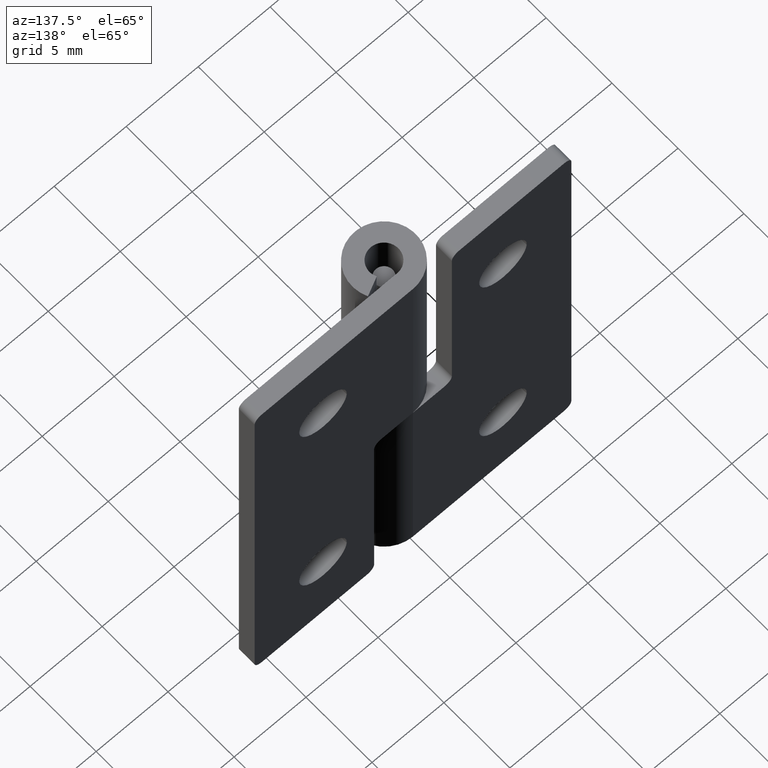
[diagram: clean part render]
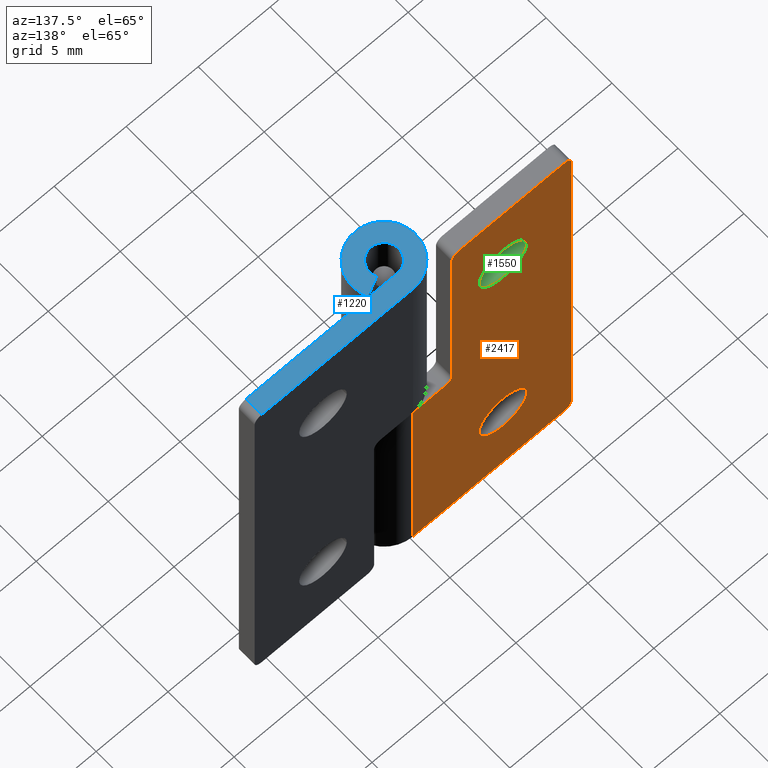
[diagram: same view with three faces highlighted in distinct colors, each labeled with its STEP entity id]
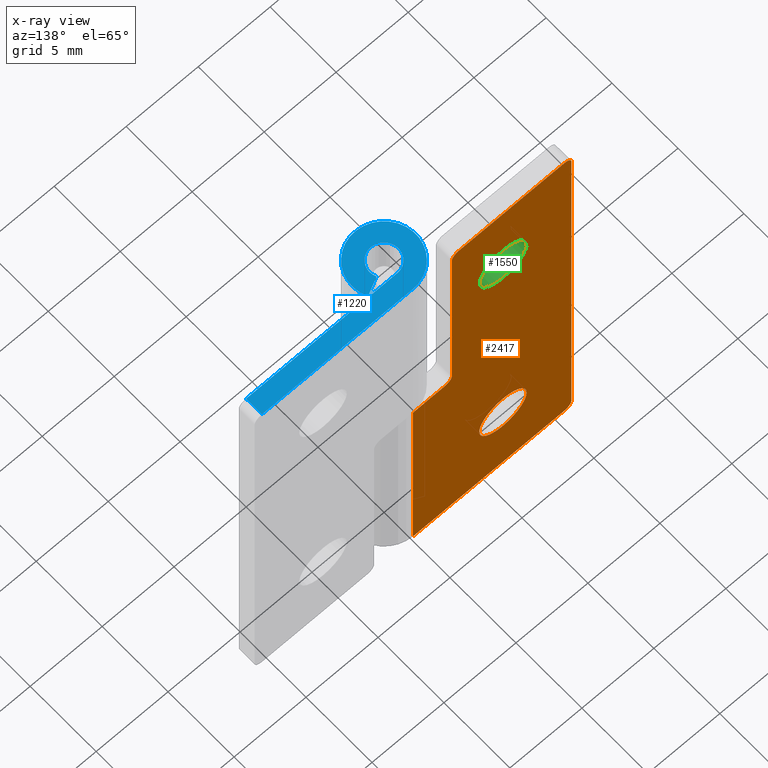
[diagram: x-ray of the same camera — body ghosted, the three highlighted faces saturated]
A machine part, auxiliary view with three faces highlighted in distinct colors.
The next image is the same camera in x-ray (body ghosted, the three faces saturated) — at least one of them is partly hidden behind the body in this view.
Their STEP definitions:

[orange] entity #2417 — the highlighted face is a freeform B-spline surface patch.
#1489=CARTESIAN_POINT('',(-4.611533959151226,2.200001001358030,24.194753775259642));
#1490=VERTEX_POINT('',#1489);
#1496=CARTESIAN_POINT('',(-6.250000000000000,2.200001001358030,22.350000000000001));
#1497=VERTEX_POINT('',#1496);
#1498=CARTESIAN_POINT('',(-4.611533959151226,2.200001001358029,24.194753775259645));
#1499=CARTESIAN_POINT('',(-4.600000000000000,2.200001001358031,24.097718427128928));
#1500=CARTESIAN_POINT('',(-4.600000000000000,2.200001001358030,24.0));
#1501=CARTESIAN_POINT('',(-4.599999999999999,2.200001001358030,22.350000000000001));
#1502=CARTESIAN_POINT('',(-6.250000000000000,2.200001001358030,22.350000000000001));
#1510=(BOUNDED_CURVE()B_SPLINE_CURVE(2,(#1498,#1499,#1500,#1501,#1502),.UNSPECIFIED.,.F.,.U.)B_SPLINE_CURVE_WITH_KNOTS((3,2,3),(0.229562753243202,0.250000000000000,0.500000000000000),.UNSPECIFIED.)CURVE()GEOMETRIC_REPRESENTATION_ITEM()RATIONAL_B_SPLINE_CURVE((0.956027302466079,0.976056276054866,1.0,0.707106781186548,1.0))REPRESENTATION_ITEM(''));
#1511=EDGE_CURVE('',#1490,#1497,#1510,.T.);
#1513=CARTESIAN_POINT('',(-7.896922417392382,2.200001001358030,23.899269909707009));
#1514=VERTEX_POINT('',#1513);
#1515=CARTESIAN_POINT('',(-6.250000000000000,2.200001001358030,22.350000000000001));
#1516=CARTESIAN_POINT('',(-7.802165010280180,2.200001001358031,22.350000000000001));
#1517=CARTESIAN_POINT('',(-7.896922417392382,2.200001001358031,23.899269909707009));
#1525=(BOUNDED_CURVE()B_SPLINE_CURVE(2,(#1515,#1516,#1517),.UNSPECIFIED.,.F.,.U.)B_SPLINE_CURVE_WITH_KNOTS((3,3),(0.500000000000000,0.739332962229295),.UNSPECIFIED.)CURVE()GEOMETRIC_REPRESENTATION_ITEM()RATIONAL_B_SPLINE_CURVE((1.0,0.719603993298013,0.976072041646040))REPRESENTATION_ITEM(''));
#1526=EDGE_CURVE('',#1497,#1514,#1525,.T.);
#1604=CARTESIAN_POINT('',(-6.250000000000000,2.200001001358030,25.649999999999999));
#1605=VERTEX_POINT('',#1604);
#1606=CARTESIAN_POINT('',(-7.896922417392382,2.200001001358030,23.899269909707009));
#1607=CARTESIAN_POINT('',(-7.900000000000000,2.200001001358031,23.949587940496684));
#1608=CARTESIAN_POINT('',(-7.900000000000000,2.200001001358030,24.0));
#1609=CARTESIAN_POINT('',(-7.900000000000000,2.200001001358030,25.650000000000006));
#1610=CARTESIAN_POINT('',(-6.250000000000000,2.200001001358030,25.649999999999999));
#1618=(BOUNDED_CURVE()B_SPLINE_CURVE(2,(#1606,#1607,#1608,#1609,#1610),.UNSPECIFIED.,.F.,.U.)B_SPLINE_CURVE_WITH_KNOTS((3,2,3),(0.739332962229296,0.750000000000000,1.0),.UNSPECIFIED.)CURVE()GEOMETRIC_REPRESENTATION_ITEM()RATIONAL_B_SPLINE_CURVE((0.976072041646042,0.987502787888535,1.0,0.707106781186548,1.0))REPRESENTATION_ITEM(''));
#1619=EDGE_CURVE('',#1514,#1605,#1618,.T.);
#1621=CARTESIAN_POINT('',(-6.250000000000000,2.200001001358030,25.649999999999999));
#1622=CARTESIAN_POINT('',(-4.784509589485300,2.200001001358031,25.650000000000002));
#1623=CARTESIAN_POINT('',(-4.611533959151226,2.200001001358029,24.194753775259645));
#1631=(BOUNDED_CURVE()B_SPLINE_CURVE(2,(#1621,#1622,#1623),.UNSPECIFIED.,.F.,.U.)B_SPLINE_CURVE_WITH_KNOTS((3,3),(0.0,0.229562753243202),.UNSPECIFIED.)CURVE()GEOMETRIC_REPRESENTATION_ITEM()RATIONAL_B_SPLINE_CURVE((1.0,0.731050505131681,0.956027302466079))REPRESENTATION_ITEM(''));
#1632=EDGE_CURVE('',#1605,#1490,#1631,.T.);
#1679=CARTESIAN_POINT('',(-4.611533959151226,2.200001001358030,6.194753775259648));
#1680=VERTEX_POINT('',#1679);
#1686=CARTESIAN_POINT('',(-6.250000000000000,2.200001001358030,4.350000000000000));
#1687=VERTEX_POINT('',#1686);
#1688=CARTESIAN_POINT('',(-4.611533959151226,2.200001001358031,6.194753775259648));
#1689=CARTESIAN_POINT('',(-4.600000000000000,2.200001001358030,6.097718427128929));
#1690=CARTESIAN_POINT('',(-4.600000000000000,2.200001001358030,6.0));
#1691=CARTESIAN_POINT('',(-4.599999999999999,2.200001001358030,4.350000000000000));
#1692=CARTESIAN_POINT('',(-6.250000000000000,2.200001001358030,4.350000000000000));
#1700=(BOUNDED_CURVE()B_SPLINE_CURVE(2,(#1688,#1689,#1690,#1691,#1692),.UNSPECIFIED.,.F.,.U.)B_SPLINE_CURVE_WITH_KNOTS((3,2,3),(0.229562753243201,0.250000000000000,0.500000000000000),.UNSPECIFIED.)CURVE()GEOMETRIC_REPRESENTATION_ITEM()RATIONAL_B_SPLINE_CURVE((0.956027302466078,0.976056276054865,1.0,0.707106781186548,1.0))REPRESENTATION_ITEM(''));
#1701=EDGE_CURVE('',#1680,#1687,#1700,.T.);
#1703=CARTESIAN_POINT('',(-7.896922417392382,2.200001001358030,5.899269909707009));
#1704=VERTEX_POINT('',#1703);
#1705=CARTESIAN_POINT('',(-6.250000000000000,2.200001001358030,4.350000000000000));
#1706=CARTESIAN_POINT('',(-7.802165010280180,2.200001001358031,4.350000000000001));
#1707=CARTESIAN_POINT('',(-7.896922417392382,2.200001001358031,5.899269909707009));
#1715=(BOUNDED_CURVE()B_SPLINE_CURVE(2,(#1705,#1706,#1707),.UNSPECIFIED.,.F.,.U.)B_SPLINE_CURVE_WITH_KNOTS((3,3),(0.500000000000000,0.739332962229295),.UNSPECIFIED.)CURVE()GEOMETRIC_REPRESENTATION_ITEM()RATIONAL_B_SPLINE_CURVE((1.0,0.719603993298013,0.976072041646040))REPRESENTATION_ITEM(''));
#1716=EDGE_CURVE('',#1687,#1704,#1715,.T.);
#1794=CARTESIAN_POINT('',(-6.250000000000000,2.200001001358030,7.650000000000000));
#1795=VERTEX_POINT('',#1794);
#1796=CARTESIAN_POINT('',(-7.896922417392382,2.200001001358030,5.899269909707009));
#1797=CARTESIAN_POINT('',(-7.900000000000000,2.200001001358031,5.949587940496682));
#1798=CARTESIAN_POINT('',(-7.900000000000000,2.200001001358030,6.0));
#1799=CARTESIAN_POINT('',(-7.900000000000000,2.200001001358030,7.650000000000000));
#1800=CARTESIAN_POINT('',(-6.250000000000000,2.200001001358030,7.650000000000000));
#1808=(BOUNDED_CURVE()B_SPLINE_CURVE(2,(#1796,#1797,#1798,#1799,#1800),.UNSPECIFIED.,.F.,.U.)B_SPLINE_CURVE_WITH_KNOTS((3,2,3),(0.739332962229296,0.750000000000000,1.0),.UNSPECIFIED.)CURVE()GEOMETRIC_REPRESENTATION_ITEM()RATIONAL_B_SPLINE_CURVE((0.976072041646042,0.987502787888535,1.0,0.707106781186548,1.0))REPRESENTATION_ITEM(''));
#1809=EDGE_CURVE('',#1704,#1795,#1808,.T.);
#1811=CARTESIAN_POINT('',(-6.250000000000000,2.200001001358030,7.650000000000000));
#1812=CARTESIAN_POINT('',(-4.784509589485308,2.200001001358030,7.650000000000000));
#1813=CARTESIAN_POINT('',(-4.611533959151226,2.200001001358031,6.194753775259648));
#1821=(BOUNDED_CURVE()B_SPLINE_CURVE(2,(#1811,#1812,#1813),.UNSPECIFIED.,.F.,.U.)B_SPLINE_CURVE_WITH_KNOTS((3,3),(0.0,0.229562753243201),.UNSPECIFIED.)CURVE()GEOMETRIC_REPRESENTATION_ITEM()RATIONAL_B_SPLINE_CURVE((1.0,0.731050505131682,0.956027302466078))REPRESENTATION_ITEM(''));
#1822=EDGE_CURVE('',#1795,#1680,#1821,.T.);
#1859=CARTESIAN_POINT('',(-2.199996991273350,2.200000999999950,15.0));
#1860=VERTEX_POINT('',#1859);
#1866=CARTESIAN_POINT('',(-2.699997000000000,2.200000999999950,15.499999956366750));
#1867=VERTEX_POINT('',#1866);
#1868=CARTESIAN_POINT('',(-2.699996999999998,2.200000999999950,15.499999956366750));
#1869=CARTESIAN_POINT('',(-2.699996956366750,2.200000999999950,14.999999991273347));
#1870=CARTESIAN_POINT('',(-2.199996991273350,2.200000999999950,15.0));
#1878=(BOUNDED_CURVE()B_SPLINE_CURVE(2,(#1868,#1869,#1870),.UNSPECIFIED.,.F.,.U.)CURVE()GEOMETRIC_REPRESENTATION_ITEM()QUASI_UNIFORM_CURVE()RATIONAL_B_SPLINE_CURVE((1.0,0.707106805869242,1.0))REPRESENTATION_ITEM(''));
#1879=EDGE_CURVE('',#1867,#1860,#1878,.T.);
#1902=CARTESIAN_POINT('',(-2.699997000000000,2.200000999999950,29.500000000000000));
#1903=VERTEX_POINT('',#1902);
#1904=CARTESIAN_POINT('',(-2.699997000000000,2.200000999999950,29.500000000000000));
#1905=CARTESIAN_POINT('',(-2.699997000000000,2.200000999999950,15.499999956366750));
#1906=QUASI_UNIFORM_CURVE('',1,(#1904,#1905),.UNSPECIFIED.,.F.,.U.);
#1907=EDGE_CURVE('',#1903,#1867,#1906,.T.);
#1922=CARTESIAN_POINT('',(0.0,2.200001000000000,15.0));
#1923=VERTEX_POINT('',#1922);
#1924=CARTESIAN_POINT('',(-2.199996991273350,2.200000999999950,15.0));
#1925=CARTESIAN_POINT('',(0.0,2.200001000000000,15.0));
#1926=QUASI_UNIFORM_CURVE('',1,(#1924,#1925),.UNSPECIFIED.,.F.,.U.);
#1927=EDGE_CURVE('',#1860,#1923,#1926,.T.);
#2018=CARTESIAN_POINT('',(-10.500000000000000,2.200000999999950,30.0));
#2019=VERTEX_POINT('',#2018);
#2025=CARTESIAN_POINT('',(-11.0,2.200000999999950,29.500000000000000));
#2026=VERTEX_POINT('',#2025);
#2027=CARTESIAN_POINT('',(-10.500000000000000,2.200000999999950,30.0));
#2028=CARTESIAN_POINT('',(-11.000000000000002,2.200000999999951,30.000000000000004));
#2029=CARTESIAN_POINT('',(-11.0,2.200000999999950,29.500000000000000));
#2037=(BOUNDED_CURVE()B_SPLINE_CURVE(2,(#2027,#2028,#2029),.UNSPECIFIED.,.F.,.U.)CURVE()GEOMETRIC_REPRESENTATION_ITEM()QUASI_UNIFORM_CURVE()RATIONAL_B_SPLINE_CURVE((1.0,0.707106781186548,1.0))REPRESENTATION_ITEM(''));
#2038=EDGE_CURVE('',#2019,#2026,#2037,.T.);
#2078=CARTESIAN_POINT('',(-3.199997000000000,2.200001000000000,30.0));
#2079=VERTEX_POINT('',#2078);
#2080=CARTESIAN_POINT('',(-2.699997000000000,2.200000999999950,29.500000000000000));
#2081=CARTESIAN_POINT('',(-2.699997000000000,2.200000999999951,30.000000000000004));
#2082=CARTESIAN_POINT('',(-3.199997000000000,2.200000999999950,30.0));
#2090=(BOUNDED_CURVE()B_SPLINE_CURVE(2,(#2080,#2081,#2082),.UNSPECIFIED.,.F.,.U.)CURVE()GEOMETRIC_REPRESENTATION_ITEM()QUASI_UNIFORM_CURVE()RATIONAL_B_SPLINE_CURVE((1.0,0.707106781186548,1.0))REPRESENTATION_ITEM(''));
#2091=EDGE_CURVE('',#1903,#2079,#2090,.T.);
#2132=CARTESIAN_POINT('',(-11.0,2.200000999999950,0.500000000000014));
#2133=VERTEX_POINT('',#2132);
#2139=CARTESIAN_POINT('',(-10.500000000000000,2.200001000000000,0.0));
#2140=VERTEX_POINT('',#2139);
#2141=CARTESIAN_POINT('',(-11.0,2.200000999999950,0.500000000000014));
#2142=CARTESIAN_POINT('',(-11.000000000000002,2.200000999999951,1.398621E-014));
#2143=CARTESIAN_POINT('',(-10.500000000000000,2.200001000000000,0.0));
#2151=(BOUNDED_CURVE()B_SPLINE_CURVE(2,(#2141,#2142,#2143),.UNSPECIFIED.,.F.,.U.)CURVE()GEOMETRIC_REPRESENTATION_ITEM()QUASI_UNIFORM_CURVE()RATIONAL_B_SPLINE_CURVE((1.0,0.707106781186548,1.0))REPRESENTATION_ITEM(''));
#2152=EDGE_CURVE('',#2133,#2140,#2151,.T.);
#2243=CARTESIAN_POINT('',(-0.000000115191736,2.200000000000000,0.0));
#2244=VERTEX_POINT('',#2243);
#2245=CARTESIAN_POINT('',(-0.000000115191736,2.200000000000000,0.0));
#2246=CARTESIAN_POINT('',(0.0,2.200001000000000,15.0));
#2247=QUASI_UNIFORM_CURVE('',1,(#2245,#2246),.UNSPECIFIED.,.F.,.U.);
#2248=EDGE_CURVE('',#2244,#1923,#2247,.T.);
#2307=CARTESIAN_POINT('',(-0.000000115191736,2.200000000000000,0.0));
#2308=CARTESIAN_POINT('',(-10.500000000000000,2.200001000000000,0.0));
#2309=QUASI_UNIFORM_CURVE('',1,(#2307,#2308),.UNSPECIFIED.,.F.,.U.);
#2310=EDGE_CURVE('',#2244,#2140,#2309,.T.);
#2324=CARTESIAN_POINT('',(-11.0,2.200000999999950,0.500000000000014));
#2325=CARTESIAN_POINT('',(-11.0,2.200000999999950,29.500000000000000));
#2326=QUASI_UNIFORM_CURVE('',1,(#2324,#2325),.UNSPECIFIED.,.F.,.U.);
#2327=EDGE_CURVE('',#2133,#2026,#2326,.T.);
#2350=CARTESIAN_POINT('',(-3.199997000000000,2.200001000000000,30.0));
#2351=CARTESIAN_POINT('',(-10.500000000000000,2.200000999999950,30.0));
#2352=QUASI_UNIFORM_CURVE('',1,(#2350,#2351),.UNSPECIFIED.,.F.,.U.);
#2353=EDGE_CURVE('',#2079,#2019,#2352,.T.);
#2388=CARTESIAN_POINT('',(-11.549449978679871,2.200001000000000,-1.498499941854179));
#2389=CARTESIAN_POINT('',(-11.549449978679860,2.200001000000000,31.498500746516889));
#2390=CARTESIAN_POINT('',(0.549450273722857,2.200001000000000,-1.498499941854179));
#2391=CARTESIAN_POINT('',(0.549450273722857,2.200001000000000,31.498500746516889));
#2392=B_SPLINE_SURFACE_WITH_KNOTS('',1,1,((#2388,#2390),(#2389,#2391)),.UNSPECIFIED.,.F.,.F.,.U.,(2,2),(2,2),(0.0,32.997000688371067),(0.0,12.098900252402720),.UNSPECIFIED.);
#2393=ORIENTED_EDGE('',*,*,#1907,.T.);
#2394=ORIENTED_EDGE('',*,*,#1879,.T.);
#2395=ORIENTED_EDGE('',*,*,#1927,.T.);
#2396=ORIENTED_EDGE('',*,*,#2248,.F.);
#2397=ORIENTED_EDGE('',*,*,#2310,.T.);
#2398=ORIENTED_EDGE('',*,*,#2152,.F.);
#2399=ORIENTED_EDGE('',*,*,#2327,.T.);
#2400=ORIENTED_EDGE('',*,*,#2038,.F.);
#2401=ORIENTED_EDGE('',*,*,#2353,.F.);
#2402=ORIENTED_EDGE('',*,*,#2091,.F.);
#2403=EDGE_LOOP('',(#2393,#2394,#2395,#2396,#2397,#2398,#2399,#2400,#2401,#2402));
#2404=FACE_OUTER_BOUND('',#2403,.T.);
#2405=ORIENTED_EDGE('',*,*,#1716,.F.);
#2406=ORIENTED_EDGE('',*,*,#1701,.F.);
#2407=ORIENTED_EDGE('',*,*,#1822,.F.);
#2408=ORIENTED_EDGE('',*,*,#1809,.F.);
#2409=EDGE_LOOP('',(#2405,#2406,#2407,#2408));
#2410=FACE_BOUND('',#2409,.T.);
#2411=ORIENTED_EDGE('',*,*,#1526,.F.);
#2412=ORIENTED_EDGE('',*,*,#1511,.F.);
#2413=ORIENTED_EDGE('',*,*,#1632,.F.);
#2414=ORIENTED_EDGE('',*,*,#1619,.F.);
#2415=EDGE_LOOP('',(#2411,#2412,#2413,#2414));
#2416=FACE_BOUND('',#2415,.T.);
#2417=ADVANCED_FACE('',(#2404,#2410,#2416),#2392,.T.);

[blue] entity #1220 — the highlighted face is a freeform B-spline surface patch.
#992=CARTESIAN_POINT('',(10.500000000000000,1.0,30.0));
#993=VERTEX_POINT('',#992);
#1014=CARTESIAN_POINT('',(10.500000000000000,2.200001000000000,30.0));
#1015=VERTEX_POINT('',#1014);
#1029=CARTESIAN_POINT('',(10.500000000000000,2.200001000000000,30.0));
#1030=CARTESIAN_POINT('',(10.500000000000000,1.0,30.0));
#1031=QUASI_UNIFORM_CURVE('',1,(#1029,#1030),.UNSPECIFIED.,.F.,.U.);
#1032=EDGE_CURVE('',#1015,#993,#1031,.T.);
#1151=CARTESIAN_POINT('',(-2.833748043917603,-2.417310352967681,30.0));
#1152=CARTESIAN_POINT('',(11.134335966301970,-2.417310352967681,30.0));
#1153=CARTESIAN_POINT('',(-2.833748043917603,2.419663667177656,30.0));
#1154=CARTESIAN_POINT('',(11.134335966301970,2.419663667177656,30.0));
#1155=B_SPLINE_SURFACE_WITH_KNOTS('',1,1,((#1151,#1153),(#1152,#1154)),.UNSPECIFIED.,.F.,.F.,.U.,(2,2),(2,2),(0.0,13.968084010219570),(0.0,4.836974020145336),.UNSPECIFIED.);
#1156=CARTESIAN_POINT('',(0.0,1.0,30.0));
#1157=VERTEX_POINT('',#1156);
#1158=CARTESIAN_POINT('',(0.0,1.0,30.0));
#1159=CARTESIAN_POINT('',(10.500000000000000,1.0,30.0));
#1160=QUASI_UNIFORM_CURVE('',1,(#1158,#1159),.UNSPECIFIED.,.F.,.U.);
#1161=EDGE_CURVE('',#1157,#993,#1160,.T.);
#1162=ORIENTED_EDGE('',*,*,#1161,.T.);
#1163=ORIENTED_EDGE('',*,*,#1032,.F.);
#1164=CARTESIAN_POINT('',(0.0,2.200001000000000,30.0));
#1165=VERTEX_POINT('',#1164);
#1166=CARTESIAN_POINT('',(10.500000000000000,2.200001000000000,30.0));
#1167=CARTESIAN_POINT('',(0.0,2.200001000000000,30.0));
#1168=QUASI_UNIFORM_CURVE('',1,(#1166,#1167),.UNSPECIFIED.,.F.,.U.);
#1169=EDGE_CURVE('',#1015,#1165,#1168,.T.);
#1170=ORIENTED_EDGE('',*,*,#1169,.T.);
#1171=CARTESIAN_POINT('',(1.984314385259115,0.950000431818184,30.0));
#1172=VERTEX_POINT('',#1171);
#1173=CARTESIAN_POINT('',(1.984314385259116,0.950000431818184,30.0));
#1174=CARTESIAN_POINT('',(2.698836959186664,-0.542459334040276,30.0));
#1175=CARTESIAN_POINT('',(1.463141923783001,-1.642930342671161,30.0));
#1176=CARTESIAN_POINT('',(0.227446888379338,-2.743401351302047,30.0));
#1177=CARTESIAN_POINT('',(-1.172604472957645,-1.861451893012743,30.0));
#1178=CARTESIAN_POINT('',(-2.572655834294632,-0.979502434723438,30.0));
#1179=CARTESIAN_POINT('',(-2.113669844852895,0.610249282638282,30.0));
#1180=CARTESIAN_POINT('',(-1.654683855411160,2.200001000000000,30.0));
#1181=CARTESIAN_POINT('',(0.0,2.200001000000000,30.0));
#1189=(BOUNDED_CURVE()B_SPLINE_CURVE(2,(#1173,#1174,#1175,#1176,#1177,#1178,#1179,#1180,#1181),.UNSPECIFIED.,.F.,.U.)B_SPLINE_CURVE_WITH_KNOTS((3,2,2,2,3),(0.0,0.250000000000000,0.500000000000000,0.750000000000000,1.0),.UNSPECIFIED.)CURVE()GEOMETRIC_REPRESENTATION_ITEM()RATIONAL_B_SPLINE_CURVE((1.0,0.799182679829321,1.0,0.799182679829321,1.0,0.799182679829321,1.0,0.799182679829321,1.0))REPRESENTATION_ITEM(''));
#1190=EDGE_CURVE('',#1172,#1165,#1189,.T.);
#1191=ORIENTED_EDGE('',*,*,#1190,.F.);
#1192=CARTESIAN_POINT('',(0.901960674226564,0.431818181818183,30.0));
#1193=VERTEX_POINT('',#1192);
#1194=CARTESIAN_POINT('',(1.984314385259115,0.950000431818184,30.0));
#1195=CARTESIAN_POINT('',(0.901960674226564,0.431818181818183,30.0));
#1196=QUASI_UNIFORM_CURVE('',1,(#1194,#1195),.UNSPECIFIED.,.F.,.U.);
#1197=EDGE_CURVE('',#1172,#1193,#1196,.T.);
#1198=ORIENTED_EDGE('',*,*,#1197,.T.);
#1199=CARTESIAN_POINT('',(0.901960674226564,0.431818181818184,30.0));
#1200=CARTESIAN_POINT('',(1.226743514746886,-0.246572312485437,30.000000000000004));
#1201=CARTESIAN_POINT('',(0.665064208508542,-0.746786179947719,30.0));
#1202=CARTESIAN_POINT('',(0.103384902270198,-1.247000047410000,30.000000000000004));
#1203=CARTESIAN_POINT('',(-0.533001790889025,-0.846114112226650,30.0));
#1204=CARTESIAN_POINT('',(-1.169388484048249,-0.445228177043300,30.000000000000004));
#1205=CARTESIAN_POINT('',(-0.960758583679233,0.277385911478350,30.0));
#1206=CARTESIAN_POINT('',(-0.752128683310216,1.0,30.000000000000004));
#1207=CARTESIAN_POINT('',(0.0,1.0,30.0));
#1215=(BOUNDED_CURVE()B_SPLINE_CURVE(2,(#1199,#1200,#1201,#1202,#1203,#1204,#1205,#1206,#1207),.UNSPECIFIED.,.F.,.U.)B_SPLINE_CURVE_WITH_KNOTS((3,2,2,2,3),(0.0,0.250000000000000,0.500000000000000,0.750000000000000,1.0),.UNSPECIFIED.)CURVE()GEOMETRIC_REPRESENTATION_ITEM()RATIONAL_B_SPLINE_CURVE((1.0,0.799182679829321,1.0,0.799182679829321,1.0,0.799182679829321,1.0,0.799182679829321,1.0))REPRESENTATION_ITEM(''));
#1216=EDGE_CURVE('',#1193,#1157,#1215,.T.);
#1217=ORIENTED_EDGE('',*,*,#1216,.T.);
#1218=EDGE_LOOP('',(#1162,#1163,#1170,#1191,#1198,#1217));
#1219=FACE_OUTER_BOUND('',#1218,.T.);
#1220=ADVANCED_FACE('',(#1219),#1155,.T.);

[green] entity #1550 — the highlighted face is a freeform B-spline surface patch.
#1448=CARTESIAN_POINT('',(-4.611534281499950,0.969999974966049,24.194756487183660));
#1449=CARTESIAN_POINT('',(-4.605960434509800,0.969999974966049,24.147864302252671));
#1450=CARTESIAN_POINT('',(-4.603077582603920,0.969999974966049,24.100730090232510));
#1451=CARTESIAN_POINT('',(-4.502347492371406,0.969999974966049,22.453807672836426));
#1452=CARTESIAN_POINT('',(-6.149269909767486,0.969999974966049,22.353077582603920));
#1453=CARTESIAN_POINT('',(-7.796192327163567,0.969999974966049,22.252347492371410));
#1454=CARTESIAN_POINT('',(-7.896922417396080,0.969999974966049,23.899269909767490));
#1455=CARTESIAN_POINT('',(-4.611534281499950,2.230751027017831,24.194756487183660));
#1456=CARTESIAN_POINT('',(-4.605960434509800,2.230751027017831,24.147864302252671));
#1457=CARTESIAN_POINT('',(-4.603077582603920,2.230751027017830,24.100730090232510));
#1458=CARTESIAN_POINT('',(-4.502347492371406,2.230751027017830,22.453807672836426));
#1459=CARTESIAN_POINT('',(-6.149269909767486,2.230751027017830,22.353077582603920));
#1460=CARTESIAN_POINT('',(-7.796192327163567,2.230751027017830,22.252347492371410));
#1461=CARTESIAN_POINT('',(-7.896922417396080,2.230751027017830,23.899269909767490));
#1469=(BOUNDED_SURFACE()B_SPLINE_SURFACE(2,1,((#1448,#1455),(#1449,#1456),(#1450,#1457),(#1451,#1458),(#1452,#1459),(#1453,#1460),(#1454,#1461)),.UNSPECIFIED.,.F.,.F.,.U.)B_SPLINE_SURFACE_WITH_KNOTS((3,2,2,3),(2,2),(3.078760800517997,3.141592653589793,4.712388980384690,6.283185307179586),(0.0,1.0),.UNSPECIFIED.)GEOMETRIC_REPRESENTATION_ITEM()RATIONAL_B_SPLINE_SURFACE(((0.977505800795127,0.977505800795127),(0.988284271247462,0.988284271247462),(1.0,1.0),(0.707106781186548,0.707106781186548),(1.0,1.0),(0.707106781186548,0.707106781186548),(1.0,1.0)))REPRESENTATION_ITEM('')SURFACE());
#1470=CARTESIAN_POINT('',(-4.611533955230199,1.000000000000129,24.194753742271519));
#1471=VERTEX_POINT('',#1470);
#1472=CARTESIAN_POINT('',(-6.250000000000000,1.0,22.350000000000001));
#1473=VERTEX_POINT('',#1472);
#1474=CARTESIAN_POINT('',(-4.611533955230199,1.000000000000129,24.194753742271516));
#1475=CARTESIAN_POINT('',(-4.600000000000000,1.0,24.097718410460498));
#1476=CARTESIAN_POINT('',(-4.600000000000000,1.0,24.0));
#1477=CARTESIAN_POINT('',(-4.599999999999999,1.0,22.350000000000001));
#1478=CARTESIAN_POINT('',(-6.250000000000000,1.0,22.350000000000001));
#1486=(BOUNDED_CURVE()B_SPLINE_CURVE(2,(#1474,#1475,#1476,#1477,#1478),.UNSPECIFIED.,.F.,.U.)B_SPLINE_CURVE_WITH_KNOTS((3,2,3),(0.229562756645836,0.250000000000000,0.500000000000000),.UNSPECIFIED.)CURVE()GEOMETRIC_REPRESENTATION_ITEM()RATIONAL_B_SPLINE_CURVE((0.956027309135400,0.976056280041301,1.0,0.707106781186548,1.0))REPRESENTATION_ITEM(''));
#1487=EDGE_CURVE('',#1471,#1473,#1486,.T.);
#1488=ORIENTED_EDGE('',*,*,#1487,.F.);
#1489=CARTESIAN_POINT('',(-4.611533959151226,2.200001001358030,24.194753775259642));
#1490=VERTEX_POINT('',#1489);
#1491=CARTESIAN_POINT('',(-4.611533955230199,1.000000000000129,24.194753742271519));
#1492=CARTESIAN_POINT('',(-4.611533959151226,2.200001001358030,24.194753775259642));
#1493=QUASI_UNIFORM_CURVE('',1,(#1491,#1492),.UNSPECIFIED.,.F.,.U.);
#1494=EDGE_CURVE('',#1471,#1490,#1493,.T.);
#1495=ORIENTED_EDGE('',*,*,#1494,.T.);
#1496=CARTESIAN_POINT('',(-6.250000000000000,2.200001001358030,22.350000000000001));
#1497=VERTEX_POINT('',#1496);
#1498=CARTESIAN_POINT('',(-4.611533959151226,2.200001001358029,24.194753775259645));
#1499=CARTESIAN_POINT('',(-4.600000000000000,2.200001001358031,24.097718427128928));
#1500=CARTESIAN_POINT('',(-4.600000000000000,2.200001001358030,24.0));
#1501=CARTESIAN_POINT('',(-4.599999999999999,2.200001001358030,22.350000000000001));
#1502=CARTESIAN_POINT('',(-6.250000000000000,2.200001001358030,22.350000000000001));
#1510=(BOUNDED_CURVE()B_SPLINE_CURVE(2,(#1498,#1499,#1500,#1501,#1502),.UNSPECIFIED.,.F.,.U.)B_SPLINE_CURVE_WITH_KNOTS((3,2,3),(0.229562753243202,0.250000000000000,0.500000000000000),.UNSPECIFIED.)CURVE()GEOMETRIC_REPRESENTATION_ITEM()RATIONAL_B_SPLINE_CURVE((0.956027302466079,0.976056276054866,1.0,0.707106781186548,1.0))REPRESENTATION_ITEM(''));
#1511=EDGE_CURVE('',#1490,#1497,#1510,.T.);
#1512=ORIENTED_EDGE('',*,*,#1511,.T.);
#1513=CARTESIAN_POINT('',(-7.896922417392382,2.200001001358030,23.899269909707009));
#1514=VERTEX_POINT('',#1513);
#1515=CARTESIAN_POINT('',(-6.250000000000000,2.200001001358030,22.350000000000001));
#1516=CARTESIAN_POINT('',(-7.802165010280180,2.200001001358031,22.350000000000001));
#1517=CARTESIAN_POINT('',(-7.896922417392382,2.200001001358031,23.899269909707009));
#1525=(BOUNDED_CURVE()B_SPLINE_CURVE(2,(#1515,#1516,#1517),.UNSPECIFIED.,.F.,.U.)B_SPLINE_CURVE_WITH_KNOTS((3,3),(0.500000000000000,0.739332962229295),.UNSPECIFIED.)CURVE()GEOMETRIC_REPRESENTATION_ITEM()RATIONAL_B_SPLINE_CURVE((1.0,0.719603993298013,0.976072041646040))REPRESENTATION_ITEM(''));
#1526=EDGE_CURVE('',#1497,#1514,#1525,.T.);
#1527=ORIENTED_EDGE('',*,*,#1526,.T.);
#1528=CARTESIAN_POINT('',(-7.896922417392382,1.0,23.899269909707009));
#1529=VERTEX_POINT('',#1528);
#1530=CARTESIAN_POINT('',(-7.896922417392382,1.0,23.899269909707009));
#1531=CARTESIAN_POINT('',(-7.896922417392382,2.200001001358030,23.899269909707009));
#1532=QUASI_UNIFORM_CURVE('',1,(#1530,#1531),.UNSPECIFIED.,.F.,.U.);
#1533=EDGE_CURVE('',#1529,#1514,#1532,.T.);
#1534=ORIENTED_EDGE('',*,*,#1533,.F.);
#1535=CARTESIAN_POINT('',(-6.250000000000000,1.0,22.350000000000001));
#1536=CARTESIAN_POINT('',(-7.802165010280180,1.0,22.350000000000001));
#1537=CARTESIAN_POINT('',(-7.896922417392382,1.0,23.899269909707009));
#1545=(BOUNDED_CURVE()B_SPLINE_CURVE(2,(#1535,#1536,#1537),.UNSPECIFIED.,.F.,.U.)B_SPLINE_CURVE_WITH_KNOTS((3,3),(0.500000000000000,0.739332962229295),.UNSPECIFIED.)CURVE()GEOMETRIC_REPRESENTATION_ITEM()RATIONAL_B_SPLINE_CURVE((1.0,0.719603993298013,0.976072041646040))REPRESENTATION_ITEM(''));
#1546=EDGE_CURVE('',#1473,#1529,#1545,.T.);
#1547=ORIENTED_EDGE('',*,*,#1546,.F.);
#1548=EDGE_LOOP('',(#1488,#1495,#1512,#1527,#1534,#1547));
#1549=FACE_OUTER_BOUND('',#1548,.T.);
#1550=ADVANCED_FACE('',(#1549),#1469,.F.);